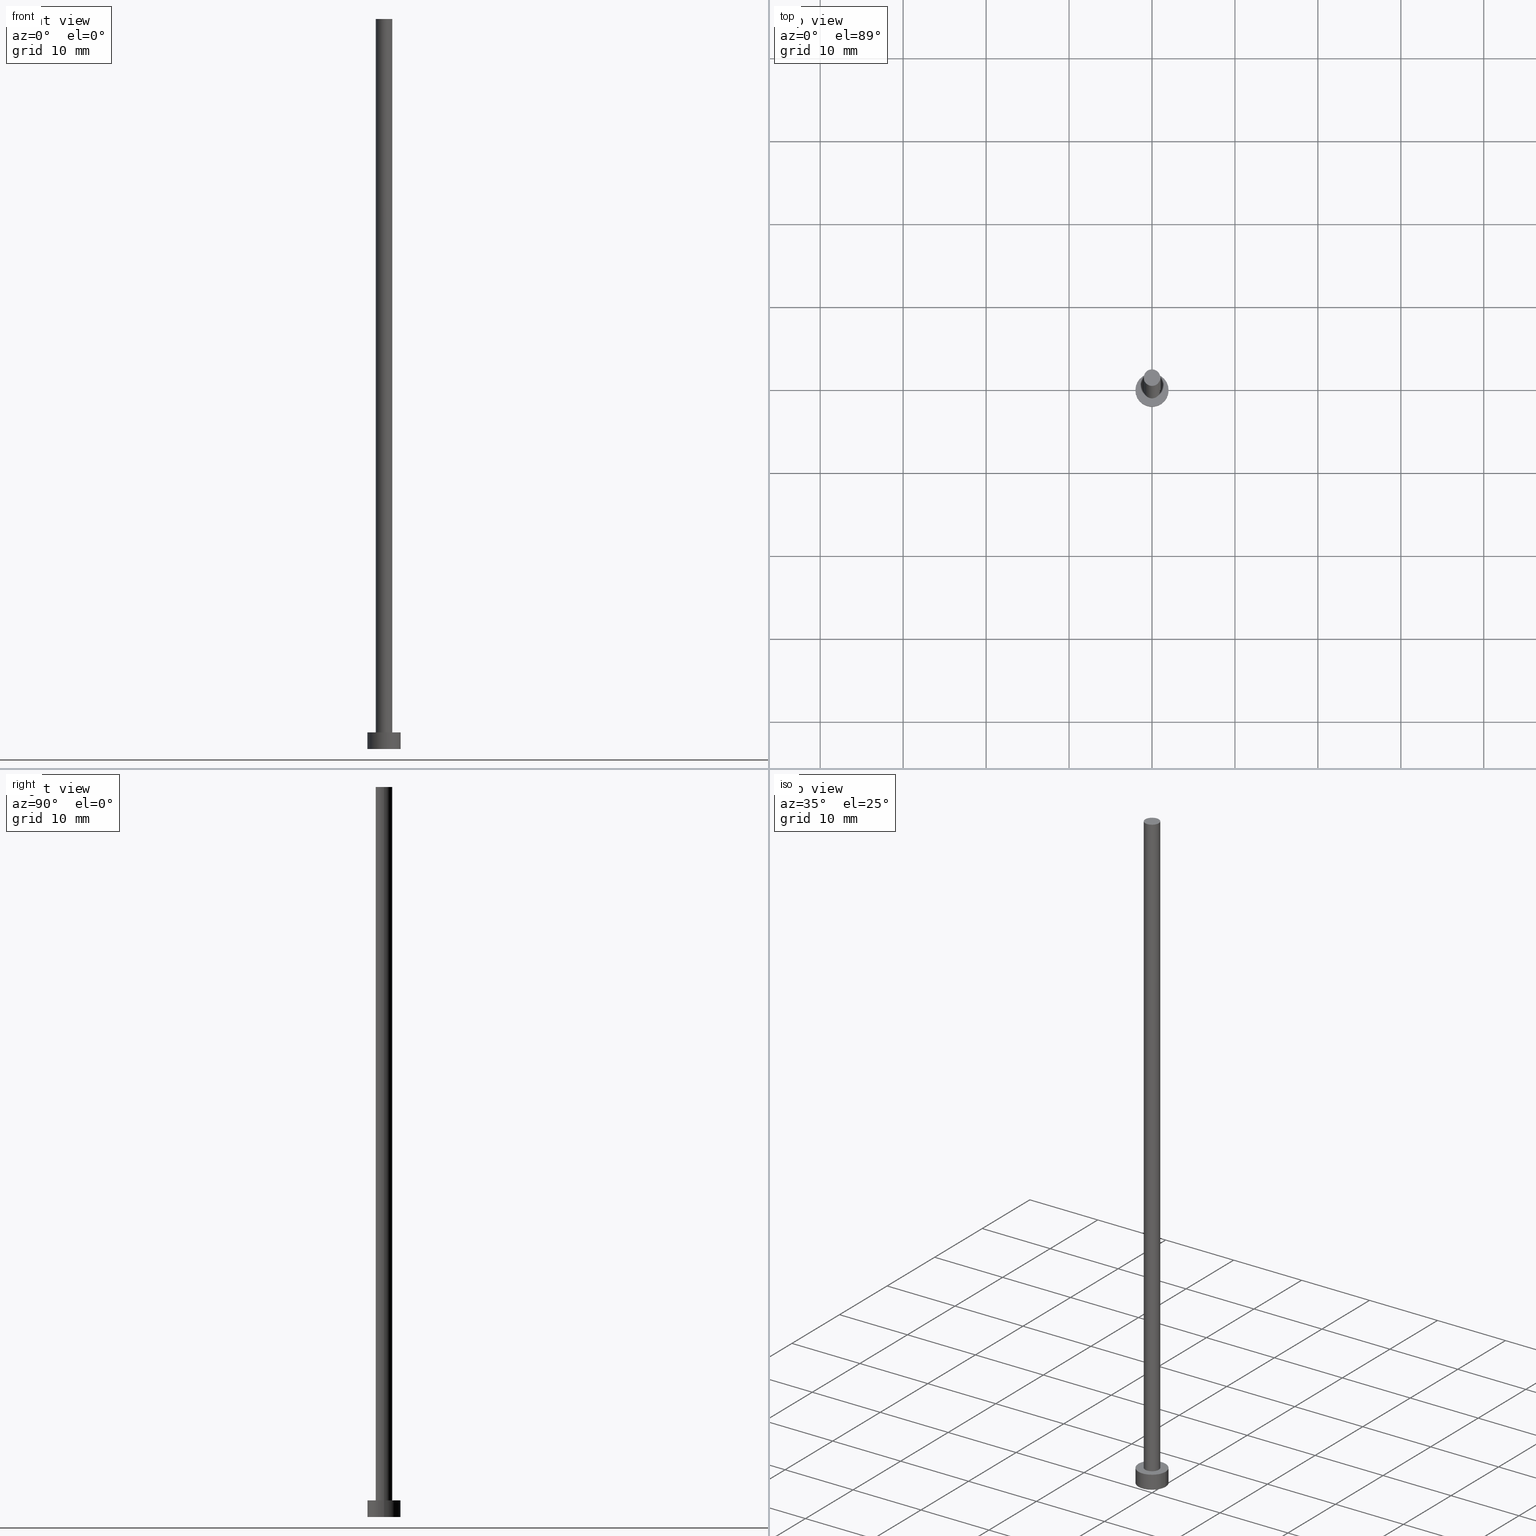
[diagram: canonical four-view strip — front | top / right | iso, engineering-drawing reading convention]
A machine part, canonical four-view strip (front | top / right | iso — engineering-drawing reading convention). The complete STEP part file that produces these views, byte-faithful:
ISO-10303-21;
HEADER;
FILE_DESCRIPTION (( 'STEP AP203' ),
    '1' );
FILE_NAME ('5fe0.STEP',
    '2023-03-22T11:22:26',
    ( '' ),
    ( '' ),
    'SwSTEP 2.0',
    'SolidWorks 2019',
    '' );
FILE_SCHEMA (( 'CONFIG_CONTROL_DESIGN' ));
ENDSEC;

DATA;
#1 = EDGE_CURVE ( 'NONE', #140, #119, #198, .T. ) ;
#2 = FACE_BOUND ( 'NONE', #85, .T. ) ;
#3 = DIRECTION ( 'NONE',  ( -0.000000000000000000, -0.000000000000000000, -1.000000000000000000 ) ) ;
#4 = APPROVAL_PERSON_ORGANIZATION ( #228, #133, #25 ) ;
#5 =( LENGTH_UNIT ( ) NAMED_UNIT ( * ) SI_UNIT ( .MILLI., .METRE. ) );
#6 = EDGE_LOOP ( 'NONE', ( #73, #49, #120, #217 ) ) ;
#7 = DATE_AND_TIME ( #173, #47 ) ;
#8 = ORIENTED_EDGE ( 'NONE', *, *, #12, .T. ) ;
#9 = ADVANCED_BREP_SHAPE_REPRESENTATION ( '5fe0', ( #207, #146 ), #162 ) ;
#10 = CIRCLE ( 'NONE', #142, 1.000000000000000000 ) ;
#11 = ORIENTED_EDGE ( 'NONE', *, *, #19, .T. ) ;
#12 = EDGE_CURVE ( 'NONE', #119, #140, #24, .T. ) ;
#13 = APPROVAL ( #51, 'NEUR�EN�' ) ;
#14 = DIRECTION ( 'NONE',  ( 0.000000000000000000, 0.000000000000000000, 1.000000000000000000 ) ) ;
#15 = LOCAL_TIME ( 12, 22, 26.00000000000000000, #200 ) ;
#16 = DIRECTION ( 'NONE',  ( -0.000000000000000000, -0.000000000000000000, -1.000000000000000000 ) ) ;
#17 = ORIENTED_EDGE ( 'NONE', *, *, #113, .T. ) ;
#18 = APPROVAL_STATUS ( 'not_yet_approved' ) ;
#19 = EDGE_CURVE ( 'NONE', #199, #225, #220, .T. ) ;
#20 = APPROVAL_DATE_TIME ( #188, #13 ) ;
#21 = DIRECTION ( 'NONE',  ( 1.000000000000000000, 0.000000000000000000, 0.000000000000000000 ) ) ;
#22 = APPLICATION_PROTOCOL_DEFINITION ( 'international standard', 'config_control_design', 1994, #213 ) ;
#23 = DIRECTION ( 'NONE',  ( 1.000000000000000000, 0.000000000000000000, -0.000000000000000000 ) ) ;
#24 = CIRCLE ( 'NONE', #161, 2.000000000000000000 ) ;
#25 = APPROVAL_ROLE ( '' ) ;
#26 = CARTESIAN_POINT ( 'NONE',  ( 0.000000000000000000, 0.000000000000000000, 0.000000000000000000 ) ) ;
#27 = ORIENTED_EDGE ( 'NONE', *, *, #113, .F. ) ;
#28 = CC_DESIGN_APPROVAL ( #13, ( #194 ) ) ;
#29 = ADVANCED_FACE ( 'NONE', ( #32 ), #106, .T. ) ;
#30 = AXIS2_PLACEMENT_3D ( 'NONE', #144, #93, #224 ) ;
#31 = AXIS2_PLACEMENT_3D ( 'NONE', #229, #210, #108 ) ;
#32 = FACE_OUTER_BOUND ( 'NONE', #48, .T. ) ;
#33 = CARTESIAN_POINT ( 'NONE',  ( 0.000000000000000000, 0.000000000000000000, 2.000000000000000000 ) ) ;
#34 = VERTEX_POINT ( 'NONE', #107 ) ;
#35 = AXIS2_PLACEMENT_3D ( 'NONE', #208, #135, #167 ) ;
#36 = CC_DESIGN_APPROVAL ( #133, ( #40 ) ) ;
#37 = CALENDAR_DATE ( 2023, 22, 3 ) ;
#38 = CARTESIAN_POINT ( 'NONE',  ( 2.000000000000000000, 2.449293598294706414E-16, 0.000000000000000000 ) ) ;
#39 = ADVANCED_FACE ( 'NONE', ( #89 ), #160, .T. ) ;
#40 = PRODUCT_DEFINITION ( 'NEZN�M�', '', #104, #196 ) ;
#41 = LOCAL_TIME ( 12, 22, 26.00000000000000000, #230 ) ;
#42 = DIRECTION ( 'NONE',  ( 0.000000000000000000, 0.000000000000000000, 1.000000000000000000 ) ) ;
#43 = PERSON_AND_ORGANIZATION ( #55, #143 ) ;
#44 = CARTESIAN_POINT ( 'NONE',  ( 1.000000000000000000, 1.224646799147353207E-16, 2.000000000000000000 ) ) ;
#45 = DIRECTION ( 'NONE',  ( 0.000000000000000000, 0.000000000000000000, 1.000000000000000000 ) ) ;
#46 = DIRECTION ( 'NONE',  ( -0.000000000000000000, -0.000000000000000000, -1.000000000000000000 ) ) ;
#47 = LOCAL_TIME ( 12, 22, 26.00000000000000000, #83 ) ;
#48 = EDGE_LOOP ( 'NONE', ( #219, #17 ) ) ;
#49 = ORIENTED_EDGE ( 'NONE', *, *, #12, .F. ) ;
#50 = CARTESIAN_POINT ( 'NONE',  ( -1.000000000000000000, 0.000000000000000000, 88.00000000000000000 ) ) ;
#51 = APPROVAL_STATUS ( 'not_yet_approved' ) ;
#52 = DIRECTION ( 'NONE',  ( -1.000000000000000000, 0.000000000000000000, 0.000000000000000000 ) ) ;
#53 = CARTESIAN_POINT ( 'NONE',  ( 0.000000000000000000, 0.000000000000000000, 88.00000000000000000 ) ) ;
#54 = VECTOR ( 'NONE', #131, 1000.000000000000000 ) ;
#55 = PERSON ( 'NEUR�EN�', 'NEUR�EN�', 'NEUR�EN�', ('NEUR�EN�'), ('NEUR�EN�'), ('NEUR�EN�') ) ;
#56 = CC_DESIGN_APPROVAL ( #244, ( #104 ) ) ;
#57 = EDGE_LOOP ( 'NONE', ( #87, #227, #11, #141 ) ) ;
#58 = PERSON_AND_ORGANIZATION ( #55, #143 ) ;
#59 = EDGE_CURVE ( 'NONE', #122, #225, #251, .T. ) ;
#60 = CC_DESIGN_DATE_AND_TIME_ASSIGNMENT ( #168, #65, ( #40 ) ) ;
#61 = CARTESIAN_POINT ( 'NONE',  ( 0.000000000000000000, 0.000000000000000000, 88.00000000000000000 ) ) ;
#62 = COORDINATED_UNIVERSAL_TIME_OFFSET ( 1, 0, .AHEAD. ) ;
#63 = DIRECTION ( 'NONE',  ( -1.000000000000000000, 0.000000000000000000, 0.000000000000000000 ) ) ;
#64 = CARTESIAN_POINT ( 'NONE',  ( 0.000000000000000000, 0.000000000000000000, 88.00000000000000000 ) ) ;
#65 = DATE_TIME_ROLE ( 'creation_date' ) ;
#66 = CARTESIAN_POINT ( 'NONE',  ( 0.000000000000000000, 0.000000000000000000, 2.000000000000000000 ) ) ;
#67 = CYLINDRICAL_SURFACE ( 'NONE', #171, 2.000000000000000000 ) ;
#68 = PERSON_AND_ORGANIZATION ( #55, #143 ) ;
#69 = ADVANCED_FACE ( 'NONE', ( #163 ), #231, .F. ) ;
#70 = ORIENTED_EDGE ( 'NONE', *, *, #59, .F. ) ;
#71 = EDGE_LOOP ( 'NONE', ( #128, #249, #105, #218 ) ) ;
#72 = AXIS2_PLACEMENT_3D ( 'NONE', #190, #75, #151 ) ;
#73 = ORIENTED_EDGE ( 'NONE', *, *, #121, .F. ) ;
#74 = SHAPE_DEFINITION_REPRESENTATION ( #94, #9 ) ;
#75 = DIRECTION ( 'NONE',  ( 0.000000000000000000, 0.000000000000000000, 1.000000000000000000 ) ) ;
#76 = COORDINATED_UNIVERSAL_TIME_OFFSET ( 1, 0, .AHEAD. ) ;
#77 =( NAMED_UNIT ( * ) PLANE_ANGLE_UNIT ( ) SI_UNIT ( $, .RADIAN. ) );
#78 = CARTESIAN_POINT ( 'NONE',  ( 0.000000000000000000, 0.000000000000000000, 0.000000000000000000 ) ) ;
#79 = CARTESIAN_POINT ( 'NONE',  ( 1.000000000000000000, 1.224646799147353207E-16, 88.00000000000000000 ) ) ;
#80 = APPROVAL_STATUS ( 'not_yet_approved' ) ;
#81 = FACE_OUTER_BOUND ( 'NONE', #6, .T. ) ;
#82 = CARTESIAN_POINT ( 'NONE',  ( 0.000000000000000000, 0.000000000000000000, 2.000000000000000000 ) ) ;
#83 = COORDINATED_UNIVERSAL_TIME_OFFSET ( 1, 0, .AHEAD. ) ;
#84 = ADVANCED_FACE ( 'NONE', ( #255 ), #211, .T. ) ;
#85 = EDGE_LOOP ( 'NONE', ( #202, #70 ) ) ;
#86 = CIRCLE ( 'NONE', #226, 1.000000000000000000 ) ;
#87 = ORIENTED_EDGE ( 'NONE', *, *, #184, .F. ) ;
#88 = APPROVAL_PERSON_ORGANIZATION ( #155, #13, #125 ) ;
#89 = FACE_OUTER_BOUND ( 'NONE', #71, .T. ) ;
#90 = CC_DESIGN_DATE_AND_TIME_ASSIGNMENT ( #7, #240, ( #194 ) ) ;
#91 = EDGE_LOOP ( 'NONE', ( #126, #243 ) ) ;
#92 = CIRCLE ( 'NONE', #233, 2.000000000000000000 ) ;
#93 = DIRECTION ( 'NONE',  ( 0.000000000000000000, 0.000000000000000000, 1.000000000000000000 ) ) ;
#94 = PRODUCT_DEFINITION_SHAPE ( 'NONE', 'NONE',  #40 ) ;
#95 = AXIS2_PLACEMENT_3D ( 'NONE', #250, #180, #127 ) ;
#96 = DATE_AND_TIME ( #37, #134 ) ;
#97 = CARTESIAN_POINT ( 'NONE',  ( 2.000000000000000000, 2.449293598294706414E-16, 2.000000000000000000 ) ) ;
#98 = DATE_AND_TIME ( #192, #41 ) ;
#99 = CARTESIAN_POINT ( 'NONE',  ( 0.000000000000000000, 0.000000000000000000, 2.000000000000000000 ) ) ;
#100 = DIRECTION ( 'NONE',  ( 0.000000000000000000, 0.000000000000000000, 1.000000000000000000 ) ) ;
#101 = SECURITY_CLASSIFICATION_LEVEL ( 'unclassified' ) ;
#102 = DIRECTION ( 'NONE',  ( -0.000000000000000000, -0.000000000000000000, -1.000000000000000000 ) ) ;
#103 = PERSON_AND_ORGANIZATION ( #55, #143 ) ;
#104 = PRODUCT_DEFINITION_FORMATION_WITH_SPECIFIED_SOURCE ( 'LIBOVOLN�', '', #203, .NOT_KNOWN. ) ;
#105 = ORIENTED_EDGE ( 'NONE', *, *, #175, .T. ) ;
#106 = PLANE ( 'NONE',  #182 ) ;
#107 = CARTESIAN_POINT ( 'NONE',  ( -2.000000000000000000, 0.000000000000000000, 0.000000000000000000 ) ) ;
#108 = DIRECTION ( 'NONE',  ( 1.000000000000000000, 0.000000000000000000, 0.000000000000000000 ) ) ;
#109 = CARTESIAN_POINT ( 'NONE',  ( -1.000000000000000000, 0.000000000000000000, 88.00000000000000000 ) ) ;
#110 = PERSON_AND_ORGANIZATION_ROLE ( 'design_owner' ) ;
#111 = LINE ( 'NONE', #132, #54 ) ;
#112 = FACE_OUTER_BOUND ( 'NONE', #158, .T. ) ;
#113 = EDGE_CURVE ( 'NONE', #241, #199, #10, .T. ) ;
#114 = CARTESIAN_POINT ( 'NONE',  ( 1.000000000000000000, 1.224646799147353207E-16, 88.00000000000000000 ) ) ;
#115 = CC_DESIGN_PERSON_AND_ORGANIZATION_ASSIGNMENT ( #68, #139, ( #194 ) ) ;
#116 = PERSON_AND_ORGANIZATION_ROLE ( 'design_supplier' ) ;
#117 = VECTOR ( 'NONE', #3, 1000.000000000000000 ) ;
#118 =( NAMED_UNIT ( * ) SI_UNIT ( $, .STERADIAN. ) SOLID_ANGLE_UNIT ( ) );
#119 = VERTEX_POINT ( 'NONE', #172 ) ;
#120 = ORIENTED_EDGE ( 'NONE', *, *, #149, .T. ) ;
#121 = EDGE_CURVE ( 'NONE', #140, #197, #138, .T. ) ;
#122 = VERTEX_POINT ( 'NONE', #44 ) ;
#123 = AXIS2_PLACEMENT_3D ( 'NONE', #82, #189, #174 ) ;
#124 = CC_DESIGN_PERSON_AND_ORGANIZATION_ASSIGNMENT ( #103, #239, ( #104 ) ) ;
#125 = APPROVAL_ROLE ( '' ) ;
#126 = ORIENTED_EDGE ( 'NONE', *, *, #201, .F. ) ;
#127 = DIRECTION ( 'NONE',  ( 1.000000000000000000, 0.000000000000000000, 0.000000000000000000 ) ) ;
#128 = ORIENTED_EDGE ( 'NONE', *, *, #1, .F. ) ;
#129 = CIRCLE ( 'NONE', #72, 2.000000000000000000 ) ;
#130 = CARTESIAN_POINT ( 'NONE',  ( 0.000000000000000000, 0.000000000000000000, 2.000000000000000000 ) ) ;
#131 = DIRECTION ( 'NONE',  ( -0.000000000000000000, -0.000000000000000000, -1.000000000000000000 ) ) ;
#132 = CARTESIAN_POINT ( 'NONE',  ( -2.000000000000000000, 0.000000000000000000, 2.000000000000000000 ) ) ;
#133 = APPROVAL ( #80, 'NEUR�EN�' ) ;
#134 = LOCAL_TIME ( 12, 22, 26.00000000000000000, #76 ) ;
#135 = DIRECTION ( 'NONE',  ( -0.000000000000000000, -0.000000000000000000, -1.000000000000000000 ) ) ;
#136 = MECHANICAL_CONTEXT ( 'NONE', #191, 'mechanical' ) ;
#137 = DIRECTION ( 'NONE',  ( -1.000000000000000000, 0.000000000000000000, 0.000000000000000000 ) ) ;
#138 = LINE ( 'NONE', #97, #242 ) ;
#139 = PERSON_AND_ORGANIZATION_ROLE ( 'classification_officer' ) ;
#140 = VERTEX_POINT ( 'NONE', #205 ) ;
#141 = ORIENTED_EDGE ( 'NONE', *, *, #159, .T. ) ;
#142 = AXIS2_PLACEMENT_3D ( 'NONE', #61, #42, #238 ) ;
#143 = ORGANIZATION ( 'NEUR�EN�', 'NEUR�EN�', '' ) ;
#144 = CARTESIAN_POINT ( 'NONE',  ( 0.000000000000000000, 0.000000000000000000, 2.000000000000000000 ) ) ;
#145 = ORIENTED_EDGE ( 'NONE', *, *, #19, .F. ) ;
#146 = AXIS2_PLACEMENT_3D ( 'NONE', #78, #252, #187 ) ;
#147 = APPLICATION_PROTOCOL_DEFINITION ( 'international standard', 'config_control_design', 1994, #191 ) ;
#148 = DIRECTION ( 'NONE',  ( -0.000000000000000000, -0.000000000000000000, -1.000000000000000000 ) ) ;
#149 = EDGE_CURVE ( 'NONE', #119, #34, #111, .T. ) ;
#150 = CARTESIAN_POINT ( 'NONE',  ( -1.000000000000000000, 0.000000000000000000, 2.000000000000000000 ) ) ;
#151 = DIRECTION ( 'NONE',  ( 1.000000000000000000, 0.000000000000000000, 0.000000000000000000 ) ) ;
#152 = UNCERTAINTY_MEASURE_WITH_UNIT (LENGTH_MEASURE( 1.000000000000000082E-05 ), #5, 'distance_accuracy_value', 'NONE');
#153 = APPROVAL_DATE_TIME ( #98, #133 ) ;
#154 = DIRECTION ( 'NONE',  ( 1.000000000000000000, 0.000000000000000000, 0.000000000000000000 ) ) ;
#155 = PERSON_AND_ORGANIZATION ( #55, #143 ) ;
#156 = EDGE_LOOP ( 'NONE', ( #8, #248 ) ) ;
#157 = CC_DESIGN_SECURITY_CLASSIFICATION ( #194, ( #104 ) ) ;
#158 = EDGE_LOOP ( 'NONE', ( #27, #179, #204, #145 ) ) ;
#159 = EDGE_CURVE ( 'NONE', #225, #122, #86, .T. ) ;
#160 = CYLINDRICAL_SURFACE ( 'NONE', #186, 2.000000000000000000 ) ;
#161 = AXIS2_PLACEMENT_3D ( 'NONE', #130, #183, #253 ) ;
#162 =( GEOMETRIC_REPRESENTATION_CONTEXT ( 3 ) GLOBAL_UNCERTAINTY_ASSIGNED_CONTEXT ( ( #152 ) ) GLOBAL_UNIT_ASSIGNED_CONTEXT ( ( #5, #77, #118 ) ) REPRESENTATION_CONTEXT ( 'NONE', 'WORKASPACE' ) );
#163 = FACE_OUTER_BOUND ( 'NONE', #91, .T. ) ;
#164 = CC_DESIGN_PERSON_AND_ORGANIZATION_ASSIGNMENT ( #43, #110, ( #203 ) ) ;
#165 = APPROVAL_DATE_TIME ( #96, #244 ) ;
#166 = LINE ( 'NONE', #79, #117 ) ;
#167 = DIRECTION ( 'NONE',  ( -1.000000000000000000, 0.000000000000000000, 0.000000000000000000 ) ) ;
#168 = DATE_AND_TIME ( #237, #234 ) ;
#169 = CARTESIAN_POINT ( 'NONE',  ( 0.000000000000000000, 0.000000000000000000, 0.000000000000000000 ) ) ;
#170 = CLOSED_SHELL ( 'NONE', ( #223, #39, #215, #178, #69, #84, #29 ) ) ;
#171 = AXIS2_PLACEMENT_3D ( 'NONE', #66, #148, #137 ) ;
#172 = CARTESIAN_POINT ( 'NONE',  ( -2.000000000000000000, 0.000000000000000000, 2.000000000000000000 ) ) ;
#173 = CALENDAR_DATE ( 2023, 22, 3 ) ;
#174 = DIRECTION ( 'NONE',  ( 1.000000000000000000, 0.000000000000000000, -0.000000000000000000 ) ) ;
#175 = EDGE_CURVE ( 'NONE', #197, #34, #92, .T. ) ;
#176 = PERSON_AND_ORGANIZATION ( #55, #143 ) ;
#177 = CIRCLE ( 'NONE', #31, 1.000000000000000000 ) ;
#178 = ADVANCED_FACE ( 'NONE', ( #2, #193 ), #206, .T. ) ;
#179 = ORIENTED_EDGE ( 'NONE', *, *, #184, .T. ) ;
#180 = DIRECTION ( 'NONE',  ( 0.000000000000000000, 0.000000000000000000, 1.000000000000000000 ) ) ;
#181 = CALENDAR_DATE ( 2023, 22, 3 ) ;
#182 = AXIS2_PLACEMENT_3D ( 'NONE', #53, #14, #222 ) ;
#183 = DIRECTION ( 'NONE',  ( 0.000000000000000000, 0.000000000000000000, 1.000000000000000000 ) ) ;
#184 = EDGE_CURVE ( 'NONE', #241, #122, #166, .T. ) ;
#185 = PRODUCT_RELATED_PRODUCT_CATEGORY ( 'detail', '', ( #203 ) ) ;
#186 = AXIS2_PLACEMENT_3D ( 'NONE', #33, #246, #52 ) ;
#187 = DIRECTION ( 'NONE',  ( 1.000000000000000000, 0.000000000000000000, 0.000000000000000000 ) ) ;
#188 = DATE_AND_TIME ( #181, #15 ) ;
#189 = DIRECTION ( 'NONE',  ( 0.000000000000000000, 0.000000000000000000, 1.000000000000000000 ) ) ;
#190 = CARTESIAN_POINT ( 'NONE',  ( 0.000000000000000000, 0.000000000000000000, 0.000000000000000000 ) ) ;
#191 = APPLICATION_CONTEXT ( 'configuration controlled 3d designs of mechanical parts and assemblies' ) ;
#192 = CALENDAR_DATE ( 2023, 22, 3 ) ;
#193 = FACE_OUTER_BOUND ( 'NONE', #156, .T. ) ;
#194 = SECURITY_CLASSIFICATION ( '', '', #101 ) ;
#195 = CC_DESIGN_PERSON_AND_ORGANIZATION_ASSIGNMENT ( #176, #116, ( #104 ) ) ;
#196 = DESIGN_CONTEXT ( 'detailed design', #213, 'design' ) ;
#197 = VERTEX_POINT ( 'NONE', #38 ) ;
#198 = CIRCLE ( 'NONE', #95, 2.000000000000000000 ) ;
#199 = VERTEX_POINT ( 'NONE', #109 ) ;
#200 = COORDINATED_UNIVERSAL_TIME_OFFSET ( 1, 0, .AHEAD. ) ;
#201 = EDGE_CURVE ( 'NONE', #34, #197, #129, .T. ) ;
#202 = ORIENTED_EDGE ( 'NONE', *, *, #159, .F. ) ;
#203 = PRODUCT ( '5fe0', '5fe0', '', ( #136 ) ) ;
#204 = ORIENTED_EDGE ( 'NONE', *, *, #59, .T. ) ;
#205 = CARTESIAN_POINT ( 'NONE',  ( 2.000000000000000000, 2.449293598294706414E-16, 2.000000000000000000 ) ) ;
#206 = PLANE ( 'NONE',  #123 ) ;
#207 = MANIFOLD_SOLID_BREP ( 'P�idat vysunut�m3', #170 ) ;
#208 = CARTESIAN_POINT ( 'NONE',  ( 0.000000000000000000, 0.000000000000000000, 88.00000000000000000 ) ) ;
#209 = APPROVAL_ROLE ( '' ) ;
#210 = DIRECTION ( 'NONE',  ( 0.000000000000000000, 0.000000000000000000, 1.000000000000000000 ) ) ;
#211 = CYLINDRICAL_SURFACE ( 'NONE', #35, 1.000000000000000000 ) ;
#212 = VECTOR ( 'NONE', #16, 1000.000000000000000 ) ;
#213 = APPLICATION_CONTEXT ( 'configuration controlled 3d designs of mechanical parts and assemblies' ) ;
#214 = AXIS2_PLACEMENT_3D ( 'NONE', #64, #102, #63 ) ;
#215 = ADVANCED_FACE ( 'NONE', ( #81 ), #67, .T. ) ;
#216 = AXIS2_PLACEMENT_3D ( 'NONE', #26, #100, #23 ) ;
#217 = ORIENTED_EDGE ( 'NONE', *, *, #201, .T. ) ;
#218 = ORIENTED_EDGE ( 'NONE', *, *, #149, .F. ) ;
#219 = ORIENTED_EDGE ( 'NONE', *, *, #221, .T. ) ;
#220 = LINE ( 'NONE', #50, #212 ) ;
#221 = EDGE_CURVE ( 'NONE', #199, #241, #177, .T. ) ;
#222 = DIRECTION ( 'NONE',  ( 1.000000000000000000, 0.000000000000000000, -0.000000000000000000 ) ) ;
#223 = ADVANCED_FACE ( 'NONE', ( #112 ), #232, .T. ) ;
#224 = DIRECTION ( 'NONE',  ( 1.000000000000000000, 0.000000000000000000, 0.000000000000000000 ) ) ;
#225 = VERTEX_POINT ( 'NONE', #150 ) ;
#226 = AXIS2_PLACEMENT_3D ( 'NONE', #99, #45, #154 ) ;
#227 = ORIENTED_EDGE ( 'NONE', *, *, #221, .F. ) ;
#228 = PERSON_AND_ORGANIZATION ( #55, #143 ) ;
#229 = CARTESIAN_POINT ( 'NONE',  ( 0.000000000000000000, 0.000000000000000000, 88.00000000000000000 ) ) ;
#230 = COORDINATED_UNIVERSAL_TIME_OFFSET ( 1, 0, .AHEAD. ) ;
#231 = PLANE ( 'NONE',  #216 ) ;
#232 = CYLINDRICAL_SURFACE ( 'NONE', #214, 1.000000000000000000 ) ;
#233 = AXIS2_PLACEMENT_3D ( 'NONE', #169, #236, #21 ) ;
#234 = LOCAL_TIME ( 12, 22, 26.00000000000000000, #62 ) ;
#235 = PERSON_AND_ORGANIZATION ( #55, #143 ) ;
#236 = DIRECTION ( 'NONE',  ( 0.000000000000000000, 0.000000000000000000, 1.000000000000000000 ) ) ;
#237 = CALENDAR_DATE ( 2023, 22, 3 ) ;
#238 = DIRECTION ( 'NONE',  ( 1.000000000000000000, 0.000000000000000000, 0.000000000000000000 ) ) ;
#239 = PERSON_AND_ORGANIZATION_ROLE ( 'creator' ) ;
#240 = DATE_TIME_ROLE ( 'classification_date' ) ;
#241 = VERTEX_POINT ( 'NONE', #114 ) ;
#242 = VECTOR ( 'NONE', #46, 1000.000000000000000 ) ;
#243 = ORIENTED_EDGE ( 'NONE', *, *, #175, .F. ) ;
#244 = APPROVAL ( #18, 'NEUR�EN�' ) ;
#245 = CC_DESIGN_PERSON_AND_ORGANIZATION_ASSIGNMENT ( #235, #254, ( #40 ) ) ;
#246 = DIRECTION ( 'NONE',  ( -0.000000000000000000, -0.000000000000000000, -1.000000000000000000 ) ) ;
#247 = APPROVAL_PERSON_ORGANIZATION ( #58, #244, #209 ) ;
#248 = ORIENTED_EDGE ( 'NONE', *, *, #1, .T. ) ;
#249 = ORIENTED_EDGE ( 'NONE', *, *, #121, .T. ) ;
#250 = CARTESIAN_POINT ( 'NONE',  ( 0.000000000000000000, 0.000000000000000000, 2.000000000000000000 ) ) ;
#251 = CIRCLE ( 'NONE', #30, 1.000000000000000000 ) ;
#252 = DIRECTION ( 'NONE',  ( 0.000000000000000000, 0.000000000000000000, 1.000000000000000000 ) ) ;
#253 = DIRECTION ( 'NONE',  ( 1.000000000000000000, 0.000000000000000000, 0.000000000000000000 ) ) ;
#254 = PERSON_AND_ORGANIZATION_ROLE ( 'creator' ) ;
#255 = FACE_OUTER_BOUND ( 'NONE', #57, .T. ) ;
ENDSEC;
END-ISO-10303-21;
